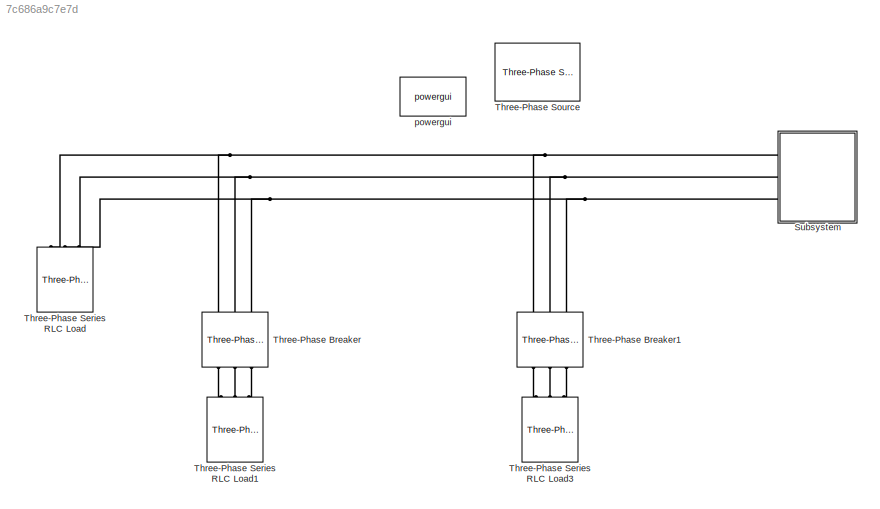
MODEL slx_7c686a9c7e7d
KIND model
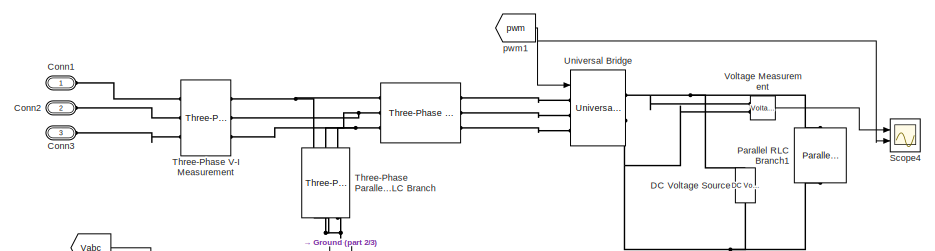
[diagram: Subsystem - part 1/3, top center region]
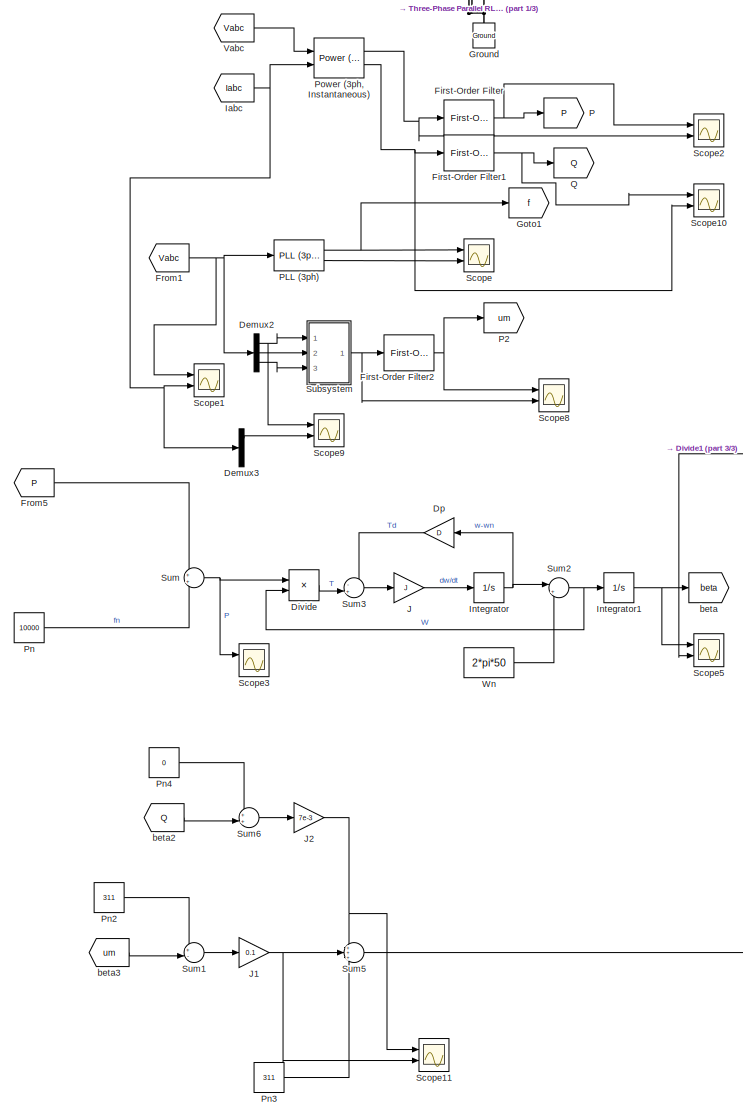
[diagram: Subsystem - part 2/3, left side, full height]
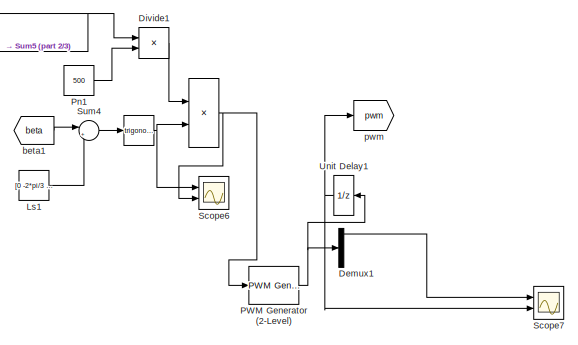
[diagram: Subsystem - part 3/3, middle right region]
BLOCK [SubSystem] Subsystem
  Ports = [0, 0, 0, 0, 0, 3]
  RequestExecContextInheritance = off
BLOCK [Trigonometry] Subsystem/ 
  Ports = [1, 1]
BLOCK [Product] Subsystem/  
  InputSameDT = off
  OutDataTypeStr = Inherit: Inherit via internal rule
  Ports = [2, 1]
  RndMeth = Floor
  SaturateOnIntegerOverflow = off
BLOCK [Reference] Subsystem/                                REF=powerlib/Elements/Three-Phase
Series RLC Branch
  AttributesFormatString = \n
  BranchType = L
  Capacitance = 1e-6
  Inductance = 5.1e-3
  LConnTagsString = A|B|C
  Measurements = None
  Ports = [0, 0, 0, 0, 0, 3, 3]
  RConnTagsString = A|B|C
  Resistance = 0.0001
  SourceBlock = powerlib/Elements/Three-Phase\nSeries RLC Branch
  SourceType = Three-Phase Series RLC Branch
BLOCK [PMIOPort] Subsystem/Conn1
  Port = 1
  Side = Left
BLOCK [PMIOPort] Subsystem/Conn2
  Port = 2
  Side = Left
BLOCK [PMIOPort] Subsystem/Conn3
  Port = 3
  Side = Left
BLOCK [Reference] Subsystem/DC Voltage Source  REF=powerlib/Electrical
Sources/DC Voltage Source
  Amplitude = 1000
  Measurements = None
  Ports = [0, 0, 0, 0, 0, 1, 1]
  SourceBlock = powerlib/Electrical\nSources/DC Voltage Source
  SourceType = DC Voltage Source
BLOCK [Demux] Subsystem/Demux1
  DisplayOption = bar
  Outputs = 6
  Ports = [1, 6]
BLOCK [Demux] Subsystem/Demux2
  DisplayOption = bar
  Outputs = 3
  Ports = [1, 3]
BLOCK [Demux] Subsystem/Demux3
  DisplayOption = bar
  Outputs = 3
  Ports = [1, 3]
BLOCK [Product] Subsystem/Divide
  InputSameDT = off
  Inputs = */
  OutDataTypeStr = Inherit: Inherit via internal rule
  Ports = [2, 1]
  RndMeth = Floor
  SaturateOnIntegerOverflow = off
BLOCK [Product] Subsystem/Divide1
  InputSameDT = off
  Inputs = */
  OutDataTypeStr = Inherit: Inherit via internal rule
  Ports = [2, 1]
  RndMeth = Floor
  SaturateOnIntegerOverflow = off
BLOCK [Gain] Subsystem/Dp
  Gain = D
  OutDataTypeStr = Inherit: Inherit via internal rule
  ParamDataTypeStr = Inherit: Inherit via internal rule
  SaturateOnIntegerOverflow = off
BLOCK [Reference] Subsystem/First-Order Filter  REF=powerlib_meascontrol/Filters/First-Order
Filter
  FilterType = Lowpass
  FreqRange = [0,  200,  1]
  Initialize = off
  PlotResponse = off
  Ports = [1, 1]
  SourceBlock = powerlib_meascontrol/Filters/First-Order\nFilter
  SourceType = First-Order Filter
  Tc = 1e-3
  Ts = 0
  Vac_Init = [0, 0, 50]
  Vdc_Init = 0
BLOCK [Reference] Subsystem/First-Order Filter1  REF=powerlib_meascontrol/Filters/First-Order
Filter
  FilterType = Lowpass
  FreqRange = [0,  200,  1]
  Initialize = on
  PlotResponse = off
  Ports = [1, 1]
  SourceBlock = powerlib_meascontrol/Filters/First-Order\nFilter
  SourceType = First-Order Filter
  Tc = 1e-3
  Ts = 0
  Vac_Init = [0, 0, 50]
  Vdc_Init = 0
BLOCK [Reference] Subsystem/First-Order Filter2  REF=powerlib_meascontrol/Filters/First-Order
Filter
  FilterType = Lowpass
  FreqRange = [0,  200,  1]
  Initialize = on
  PlotResponse = off
  Ports = [1, 1]
  SourceBlock = powerlib_meascontrol/Filters/First-Order\nFilter
  SourceType = First-Order Filter
  Tc = 1e-3
  Ts = 0
  Vac_Init = [0, 0, 50]
  Vdc_Init = 0
BLOCK [From] Subsystem/From1
  GotoTag = Vabc
  TagVisibility = global
BLOCK [From] Subsystem/From5
  GotoTag = P
BLOCK [Goto] Subsystem/Goto1
  GotoTag = f
BLOCK [Reference] Subsystem/Ground  REF=powerlib/Elements/Ground
  LConnTagsString = a
  Ports = [0, 0, 0, 0, 0, 1]
  SourceBlock = powerlib/Elements/Ground
  SourceType = Ground
BLOCK [From] Subsystem/Iabc
  GotoTag = Iabc
  TagVisibility = global
BLOCK [Integrator] Subsystem/Integrator
  Ports = [1, 1]
BLOCK [Integrator] Subsystem/Integrator1
  Ports = [1, 1]
BLOCK [Gain] Subsystem/J
  Gain = J
  OutDataTypeStr = Inherit: Inherit via internal rule
  ParamDataTypeStr = Inherit: Inherit via internal rule
  SaturateOnIntegerOverflow = off
BLOCK [Gain] Subsystem/J1
  Gain = 0.1
  OutDataTypeStr = Inherit: Inherit via internal rule
  ParamDataTypeStr = Inherit: Inherit via internal rule
  SaturateOnIntegerOverflow = off
BLOCK [Gain] Subsystem/J2
  Gain = 7e-3
  OutDataTypeStr = Inherit: Inherit via internal rule
  ParamDataTypeStr = Inherit: Inherit via internal rule
  SaturateOnIntegerOverflow = off
BLOCK [Constant] Subsystem/Ls1
  Value = [0 -2*pi/3 2*pi/3]
BLOCK [Goto] Subsystem/P
  GotoTag = P
BLOCK [Goto] Subsystem/P2
  GotoTag = um
BLOCK [Reference] Subsystem/PLL (3ph)  REF=powerlib_meascontrol/PLL/PLL
(3ph)
  AGC = on
  FilterCutOffFreq = 25
  Fmin = 45
  MaxRateChangeFreq = 12
  ParK = [180, 3200, 1]
  Par_Init = [0, 50]
  Ports = [1, 2]
  SourceBlock = powerlib_meascontrol/PLL/PLL\n(3ph)
  SourceType = PLL (3ph)
  TcD = 1e-5
  Ts = Ts
BLOCK [Reference] Subsystem/PWM Generator (2-Level)  REF=powerlib_meascontrol/Pulse & Signal
Generators/PWM Generator
(2-Level)
  Fc = 200*50
  Freq = 60
  ModulatingSignals = off
  ModulatorMode = Unsynchronized
  ModulatorType = Three-phase bridge (6 pulses)
  Phase = 0
  Ports = [1, 1]
  SourceBlock = powerlib_meascontrol/Pulse & Signal\nGenerators/PWM Generator\n(2-Level)
  SourceType = PWM Generator (2-Level)
  Ts = 0
  m = 0.8
  nF = 100
BLOCK [Reference] Subsystem/Parallel RLC Branch1  REF=powerlib/Elements/Parallel RLC Branch
  AttributesFormatString = \n
  BranchType = R
  Capacitance = 1e-6
  Inductance = 1e-3
  InitialCurrent = 0
  InitialVoltage = 0
  LConnTagsString = a
  Measurements = None
  Ports = [0, 0, 0, 0, 0, 1, 1]
  RConnTagsString = __new0
  Resistance = 100
  SetiL0 = off
  Setx0 = off
  SourceBlock = powerlib/Elements/Parallel RLC Branch
  SourceType = Parallel RLC Branch
BLOCK [Constant] Subsystem/Pn
  Value = 10000
BLOCK [Constant] Subsystem/Pn1
  Value = 500
BLOCK [Constant] Subsystem/Pn2
  Value = 311
BLOCK [Constant] Subsystem/Pn3
  Value = 311
BLOCK [Constant] Subsystem/Pn4
  Value = 0
BLOCK [Reference] Subsystem/Power (3ph, Instantaneous)  REF=powerlib_meascontrol/Measurements/Power
(3ph, Instantaneous)
  Ports = [2, 2]
  SourceBlock = powerlib_meascontrol/Measurements/Power\n(3ph, Instantaneous)
  SourceType = Power (3ph, Instantaneous)
BLOCK [Goto] Subsystem/Q
  GotoTag = Q
BLOCK [Scope] Subsystem/Scope
  Floating = off
  LimitDataPoints = off
  NumInputPorts = 2
  Ports = [2]
  ShowLegends = off
  YMax = 60~6.5
  YMin = 59.9999~0
BLOCK [Scope] Subsystem/Scope1
  DataFormat = StructureWithTime
  Floating = off
  LimitDataPoints = off
  NumInputPorts = 2
  Ports = [2]
  SaveName = ScopeData1
  SaveToWorkspace = on
  ShowLegends = off
  YMax = 1200~65
  YMin = -1200~0
  ZoomMode = xonly
BLOCK [Scope] Subsystem/Scope10
  DataFormat = StructureWithTime
  Floating = off
  LimitDataPoints = off
  NumInputPorts = 2
  Ports = [2]
  SaveName = ScopeData10
  SaveToWorkspace = on
  ShowLegends = off
  YMax = 1~3
  YMin = -1~-3
BLOCK [Scope] Subsystem/Scope11
  Floating = off
  LimitDataPoints = off
  NumInputPorts = 2
  Ports = [2]
  SaveName = ScopeData11
  ShowLegends = off
  TimeRange = 0.5
  YMax = 1~35
  YMin = -9~-5
BLOCK [Scope] Subsystem/Scope2
  DataFormat = StructureWithTime
  Floating = off
  LimitDataPoints = off
  NumInputPorts = 2
  Ports = [2]
  SaveName = ScopeData2
  SaveToWorkspace = on
  ShowLegends = off
  YMax = -9975~-9800
  YMin = -10035~-10300
BLOCK [Scope] Subsystem/Scope3
  Floating = off
  LimitDataPoints = off
  NumInputPorts = 2
  Ports = [2]
  SaveName = ScopeData3
  ShowLegends = off
  YMax = -9000~1
  YMin = -9800~-1
BLOCK [Scope] Subsystem/Scope4
  Floating = off
  LimitDataPoints = off
  NumInputPorts = 2
  Ports = [2]
  SaveName = ScopeData4
  ShowLegends = off
  YMax = 525~1
  YMin = 475~0
  ZoomMode = xonly
BLOCK [Scope] Subsystem/Scope5
  Floating = off
  LimitDataPoints = off
  NumInputPorts = 2
  Ports = [2]
  SaveName = ScopeData5
  ShowLegends = off
  YMax = 113~1
  YMin = 94~-1
BLOCK [Scope] Subsystem/Scope6
  Floating = off
  LimitDataPoints = off
  NumInputPorts = 2
  Ports = [2]
  SaveName = ScopeData6
  ShowLegends = off
  YMax = 1~0.8
  YMin = -1~-0.8
  ZoomMode = xonly
BLOCK [Scope] Subsystem/Scope7
  DataFormat = StructureWithTime
  Floating = off
  LimitDataPoints = off
  NumInputPorts = 2
  Ports = [2]
  SaveName = ScopeData7
  SaveToWorkspace = on
  ShowLegends = off
  TimeRange = 0.001051620249093166
  YMax = 1.5~1
  YMin = -0.5~-1
  ZoomMode = xonly
BLOCK [Scope] Subsystem/Scope8
  Floating = off
  LimitDataPoints = off
  NumInputPorts = 2
  Ports = [2]
  SaveName = ScopeData8
  ShowLegends = off
  TimeRange = 0.8
  YMax = 500~1
  YMin = 0~-1
  ZoomMode = yonly
BLOCK [Scope] Subsystem/Scope9
  DataFormat = StructureWithTime
  Floating = off
  LimitDataPoints = off
  NumInputPorts = 2
  Ports = [2]
  SaveName = ScopeData9
  SaveToWorkspace = on
  ShowLegends = off
  YMax = 300~22.5
  YMin = -350~-22.5
  ZoomMode = xonly
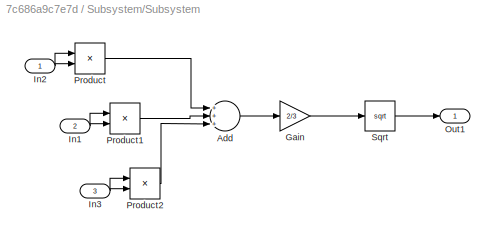
BLOCK [SubSystem] Subsystem/Subsystem
  Ports = [3, 1]
  RequestExecContextInheritance = off
BLOCK [Sum] Subsystem/Subsystem/Add
  InputSameDT = off
  Inputs = +++
  OutDataTypeStr = Inherit: Inherit via internal rule
  Ports = [3, 1]
  SaturateOnIntegerOverflow = off
BLOCK [Gain] Subsystem/Subsystem/Gain
  Gain = 2/3
  OutDataTypeStr = Inherit: Inherit via internal rule
  ParamDataTypeStr = Inherit: Inherit via internal rule
  SaturateOnIntegerOverflow = off
BLOCK [Inport] Subsystem/Subsystem/In1
  IconDisplay = Port number
  Port = 2
BLOCK [Inport] Subsystem/Subsystem/In2
  IconDisplay = Port number
BLOCK [Inport] Subsystem/Subsystem/In3
  IconDisplay = Port number
  Port = 3
BLOCK [Outport] Subsystem/Subsystem/Out1
  IconDisplay = Port number
BLOCK [Product] Subsystem/Subsystem/Product
  InputSameDT = off
  OutDataTypeStr = Inherit: Inherit via internal rule
  Ports = [2, 1]
  RndMeth = Floor
  SaturateOnIntegerOverflow = off
BLOCK [Product] Subsystem/Subsystem/Product1
  InputSameDT = off
  OutDataTypeStr = Inherit: Inherit via internal rule
  Ports = [2, 1]
  RndMeth = Floor
  SaturateOnIntegerOverflow = off
BLOCK [Product] Subsystem/Subsystem/Product2
  InputSameDT = off
  OutDataTypeStr = Inherit: Inherit via internal rule
  Ports = [2, 1]
  RndMeth = Floor
  SaturateOnIntegerOverflow = off
BLOCK [Sqrt] Subsystem/Subsystem/Sqrt
BLOCK [Sum] Subsystem/Sum
  IconShape = round
  InputSameDT = off
  OutDataTypeStr = Inherit: Inherit via internal rule
  Ports = [2, 1]
  SaturateOnIntegerOverflow = off
BLOCK [Sum] Subsystem/Sum1
  IconShape = round
  InputSameDT = off
  Inputs = +-|
  OutDataTypeStr = Inherit: Inherit via internal rule
  Ports = [2, 1]
  SaturateOnIntegerOverflow = off
BLOCK [Sum] Subsystem/Sum2
  IconShape = round
  InputSameDT = off
  Inputs = |++
  OutDataTypeStr = Inherit: Inherit via internal rule
  Ports = [2, 1]
  SaturateOnIntegerOverflow = off
BLOCK [Sum] Subsystem/Sum3
  IconShape = round
  InputSameDT = off
  Inputs = -+|
  OutDataTypeStr = Inherit: Inherit via internal rule
  Ports = [2, 1]
  SaturateOnIntegerOverflow = off
BLOCK [Sum] Subsystem/Sum4
  IconShape = round
  InputSameDT = off
  Inputs = |++
  OutDataTypeStr = Inherit: Inherit via internal rule
  Ports = [2, 1]
  SaturateOnIntegerOverflow = off
BLOCK [Sum] Subsystem/Sum5
  IconShape = round
  InputSameDT = off
  Inputs = +++
  OutDataTypeStr = Inherit: Inherit via internal rule
  Ports = [3, 1]
  SaturateOnIntegerOverflow = off
BLOCK [Sum] Subsystem/Sum6
  IconShape = round
  InputSameDT = off
  Inputs = ++|
  OutDataTypeStr = Inherit: Inherit via internal rule
  Ports = [2, 1]
  SaturateOnIntegerOverflow = off
BLOCK [Reference] Subsystem/Three-Phase Parallel RLC Branch  REF=powerlib/Elements/Three-Phase
Parallel RLC Branch
  AttributesFormatString = \n
  BranchType = C
  Capacitance = 4.9e-6
  Inductance = 1e-3
  LConnTagsString = A|B|C
  Measurements = None
  Ports = [0, 0, 0, 0, 0, 3, 3]
  RConnTagsString = A|B|C
  Resistance = 1
  SourceBlock = powerlib/Elements/Three-Phase\nParallel RLC Branch
  SourceType = Three-Phase Parallel RLC Branch
BLOCK [Reference] Subsystem/Three-Phase V-I Measurement  REF=powerlib/Measurements/Three-Phase
V-I Measurement
  CurrentMeasurement = yes
  Ipu = off
  LabelI = Iabc
  LabelV = Vabc
  OutputType = Complex
  PSBequivalent = 0
  Pbase = 100e6
  PhasorSimulation = off
  Ports = [0, 0, 0, 0, 0, 3, 3]
  SetLabelI = on
  SetLabelV = on
  SourceBlock = powerlib/Measurements/Three-Phase\nV-I Measurement
  SourceType = Three-Phase VI Measurement
  Vbase = 500e3
  VoltageMeasurement = phase-to-ground
  Vpu = off
  VpuLL = off
BLOCK [UnitDelay] Subsystem/Unit Delay1
  SampleTime = Ts
BLOCK [Reference] Subsystem/Universal Bridge  REF=powerlib/Power
Electronics/Universal Bridge
  Arms = 3
  Device = IGBT / Diodes
  ForwardVoltage = 0
  ForwardVoltages = [  0  0  ]
  GTOparameters = [ 10e-6 , 20e-6 ]
  IGBTparameters = [ 1e-6 , 2e-6 ]
  Lon = 0
  Measurements = None
  Measurements_2 = None
  Ports = [1, 0, 0, 0, 0, 3, 2]
  Ron = 1e-3
  SnubberCapacitance = inf
  SnubberResistance = 1e5
  SourceBlock = powerlib/Power\nElectronics/Universal Bridge
  SourceType = Universal Bridge
  converterType = Rectifier
BLOCK [From] Subsystem/Vabc
  GotoTag = Vabc
  TagVisibility = global
BLOCK [Reference] Subsystem/Voltage Measurement  REF=powerlib/Measurements/Voltage Measurement
  OutputType = Complex
  PSBequivalent = 0
  PhasorSimulation = off
  Ports = [0, 1, 0, 0, 0, 2]
  SourceBlock = powerlib/Measurements/Voltage Measurement
  SourceType = Voltage Measurement
  UserDataPersistent = on
BLOCK [Constant] Subsystem/Wn
  Value = 2*pi*50
BLOCK [Goto] Subsystem/beta
  GotoTag = beta
BLOCK [From] Subsystem/beta1
  GotoTag = beta
BLOCK [From] Subsystem/beta2
  GotoTag = Q
BLOCK [From] Subsystem/beta3
  GotoTag = um
BLOCK [Goto] Subsystem/pwm
  GotoTag = pwm
BLOCK [From] Subsystem/pwm1
  GotoTag = pwm
BLOCK [Reference] Three-Phase Breaker  REF=powerlib/Elements/Three-Phase Breaker
  BreakerResistance = 0.01
  External = off
  InitialState = open
  Measurements = None
  Ports = [0, 0, 0, 0, 0, 3, 3]
  SnubberCapacitance = inf
  SnubberResistance = 1e6
  SourceBlock = powerlib/Elements/Three-Phase Breaker
  SourceType = Three-Phase Breaker
  SwitchA = on
  SwitchB = on
  SwitchC = on
  SwitchTimes = [0.1 0.3]
BLOCK [Reference] Three-Phase Breaker1  REF=powerlib/Elements/Three-Phase Breaker
  BreakerResistance = 0.01
  External = off
  InitialState = open
  Measurements = None
  Ports = [0, 0, 0, 0, 0, 3, 3]
  SnubberCapacitance = inf
  SnubberResistance = 1e6
  SourceBlock = powerlib/Elements/Three-Phase Breaker
  SourceType = Three-Phase Breaker
  SwitchA = on
  SwitchB = on
  SwitchC = on
  SwitchTimes = [0.5  0.7]
BLOCK [Reference] Three-Phase Series RLC Load  REF=powerlib/Elements/Three-Phase
Series RLC Load
  ActivePower = 10e3
  AttributesFormatString = \n
  CapacitivePower = 1
  Configuration = Y (grounded)
  InductivePower = 1
  LConnTagsString = A|B|C
  LoadType = constant Z
  Measurements = Branch voltages
  NominalFrequency = 50
  NominalVoltage = 380
  Ports = [0, 0, 0, 0, 0, 3]
  SourceBlock = powerlib/Elements/Three-Phase\nSeries RLC Load
  SourceType = Three-Phase Series RLC Load
BLOCK [Reference] Three-Phase Series RLC Load1  REF=powerlib/Elements/Three-Phase
Series RLC Load
  ActivePower = 1
  AttributesFormatString = \n
  CapacitivePower = 5e3
  Configuration = Y (grounded)
  InductivePower = 1
  LConnTagsString = A|B|C
  LoadType = constant Z
  Measurements = Branch voltages
  NominalFrequency = 50
  NominalVoltage = 380
  Ports = [0, 0, 0, 0, 0, 3]
  SourceBlock = powerlib/Elements/Three-Phase\nSeries RLC Load
  SourceType = Three-Phase Series RLC Load
BLOCK [Reference] Three-Phase Series RLC Load3  REF=powerlib/Elements/Three-Phase
Series RLC Load
  ActivePower = 1
  AttributesFormatString = \n
  CapacitivePower = 1
  Configuration = Y (grounded)
  InductivePower = 1
  LConnTagsString = A|B|C
  LoadType = constant Z
  Measurements = Branch voltages
  NominalFrequency = 50
  NominalVoltage = 380
  Ports = [0, 0, 0, 0, 0, 3]
  SourceBlock = powerlib/Elements/Three-Phase\nSeries RLC Load
  SourceType = Three-Phase Series RLC Load
BLOCK [Reference] Three-Phase Source  REF=powerlib/Electrical
Sources/Three-Phase Source
  BaseVoltage = 25e3
  BusType = swing
  Frequency = 50
  Inductance = 16.58e-3
  InternalConnection = Yg
  PhaseAngle = 0
  Ports = [0, 0, 0, 0, 0, 0, 3]
  Pref = 0
  Qmax = inf
  Qmin = -inf
  Qref = 0
  Resistance = 0.8929
  ShortCircuitLevel = 100e6
  SourceBlock = powerlib/Electrical\nSources/Three-Phase Source
  SourceType = Three-Phase Source
  SpecifyImpedance = on
  Voltage = 1000*sqrt(2)
  XRratio = 7
BLOCK [Reference] powergui  REF=powerlib/powergui
  DisableRonSwitches = off
  DisableSnubberDevices = off
  DisableVfSwitches = off
  DisplayEquations = off
  DisplayStyle = 5
  EnableUseOfTLC = off
  ErrMax = 1e-4
  Frange = [0:2:500]
  FreqAxis = on
  FunctionMessages = off
  HookPort = off
  Interpol = off
  Iterations = 50
  MaxFrequency = 1000
  Pbase = 100e6
  Ports = []
  Priority = 1
  ResistiveCurrentMeasurement = off
  RestoreLinks = warning
  RmsSteady = 1
  SPID = off
  SampleTime = 1e-6
  ShowGrid = off
  SolverType = Tustin
  SourceBlock = powerlib/powergui
  SourceType = PSB option menu block
  StartTime = 0.1
  SwTol = 0
  Ts = 0
  UnitsV = kV
  UnitsW = MW
  UserDataPersistent = on
  Xlog = on
  Ylog = off
  ZoomFFT = off
  cycles = 1
  display = off
  echomessages = off
  frequency = 60
  frequencyindice = 0
  frequencyindicesteady = 1
  fundamental = 50
  methode = off
  save = off
  structure = ScopeData10
  variable = ZData
  x0status = blocks
NET Subsystem/  :1 -> Subsystem/PWM Generator (2-Level):1, Subsystem/Scope6:2
NET Subsystem/ :1 -> Subsystem/  :2, Subsystem/Scope6:1
LINE Subsystem/Demux1:1 -> Subsystem/Scope7:1
NET Subsystem/Demux2:1 -> Subsystem/Scope9:1, Subsystem/Subsystem:1
LINE Subsystem/Demux2:2 -> Subsystem/Subsystem:2
LINE Subsystem/Demux2:3 -> Subsystem/Subsystem:3
LINE Subsystem/Demux3:1 -> Subsystem/Scope9:2
LINE Subsystem/Divide1:1 -> Subsystem/  :1
LINE Subsystem/Divide:1 -> Subsystem/Sum3:2
LINE Subsystem/Dp:1 -> Subsystem/Sum3:1
NET Subsystem/First-Order Filter1:1 -> Subsystem/Q:1, Subsystem/Scope10:1
NET Subsystem/First-Order Filter2:1 -> Subsystem/P2:1, Subsystem/Scope8:1
NET Subsystem/First-Order Filter:1 -> Subsystem/P:1, Subsystem/Scope2:1
NET Subsystem/From1:1 -> Subsystem/Demux2:1, Subsystem/PLL (3ph):1, Subsystem/Scope1:1
LINE Subsystem/From5:1 -> Subsystem/Sum:1
NET Subsystem/Iabc:1 -> Subsystem/Demux3:1, Subsystem/Power (3ph, Instantaneous):2, Subsystem/Scope1:2
NET Subsystem/Integrator1:1 -> Subsystem/Scope5:1, Subsystem/beta:1
NET Subsystem/Integrator:1 -> Subsystem/Dp:1, Subsystem/Sum2:1
NET Subsystem/J1:1 -> Subsystem/Scope11:2, Subsystem/Sum5:2
NET Subsystem/J2:1 -> Subsystem/Scope11:1, Subsystem/Sum5:1
LINE Subsystem/J:1 -> Subsystem/Integrator:1
LINE Subsystem/Ls1:1 -> Subsystem/Sum4:2
NET Subsystem/PLL (3ph):1 -> Subsystem/Goto1:1, Subsystem/Scope:1
LINE Subsystem/PLL (3ph):2 -> Subsystem/Scope:2
NET Subsystem/PWM Generator (2-Level):1 -> Subsystem/Demux1:1, Subsystem/Unit Delay1:1
LINE Subsystem/Pn1:1 -> Subsystem/Divide1:2
LINE Subsystem/Pn2:1 -> Subsystem/Sum1:1
LINE Subsystem/Pn3:1 -> Subsystem/Sum5:3
LINE Subsystem/Pn4:1 -> Subsystem/Sum6:1
LINE Subsystem/Pn:1 -> Subsystem/Sum:2
NET Subsystem/Power (3ph, Instantaneous):1 -> Subsystem/First-Order Filter:1, Subsystem/Scope2:2
NET Subsystem/Power (3ph, Instantaneous):2 -> Subsystem/First-Order Filter1:1, Subsystem/Scope10:2
LINE Subsystem/Subsystem/Add:1 -> Subsystem/Subsystem/Gain:1
LINE Subsystem/Subsystem/Gain:1 -> Subsystem/Subsystem/Sqrt:1
NET Subsystem/Subsystem/In1:1 -> Subsystem/Subsystem/Product1:1, Subsystem/Subsystem/Product1:2
NET Subsystem/Subsystem/In2:1 -> Subsystem/Subsystem/Product:1, Subsystem/Subsystem/Product:2
NET Subsystem/Subsystem/In3:1 -> Subsystem/Subsystem/Product2:1, Subsystem/Subsystem/Product2:2
LINE Subsystem/Subsystem/Product1:1 -> Subsystem/Subsystem/Add:2
LINE Subsystem/Subsystem/Product2:1 -> Subsystem/Subsystem/Add:3
LINE Subsystem/Subsystem/Product:1 -> Subsystem/Subsystem/Add:1
LINE Subsystem/Subsystem/Sqrt:1 -> Subsystem/Subsystem/Out1:1
NET Subsystem/Subsystem:1 -> Subsystem/First-Order Filter2:1, Subsystem/Scope8:2
LINE Subsystem/Sum1:1 -> Subsystem/J1:1
NET Subsystem/Sum2:1 -> Subsystem/Divide:2, Subsystem/Integrator1:1
LINE Subsystem/Sum3:1 -> Subsystem/J:1
LINE Subsystem/Sum4:1 -> Subsystem/ :1
NET Subsystem/Sum5:1 -> Subsystem/Divide1:1, Subsystem/Scope5:2
LINE Subsystem/Sum6:1 -> Subsystem/J2:1
NET Subsystem/Sum:1 -> Subsystem/Divide:1, Subsystem/Scope3:1
NET Subsystem/Unit Delay1:1 -> Subsystem/Scope7:2, Subsystem/pwm:1
LINE Subsystem/Vabc:1 -> Subsystem/Power (3ph, Instantaneous):1
LINE Subsystem/Voltage Measurement:1 -> Subsystem/Scope4:1
LINE Subsystem/Wn:1 -> Subsystem/Sum2:2
LINE Subsystem/beta1:1 -> Subsystem/Sum4:1
LINE Subsystem/beta2:1 -> Subsystem/Sum6:2
LINE Subsystem/beta3:1 -> Subsystem/Sum1:2
NET Subsystem/pwm1:1 -> Subsystem/Scope4:2, Subsystem/Universal Bridge:1
PNET net1: Subsystem/                              :LConn1 -- Subsystem/Three-Phase Parallel RLC Branch:LConn1 -- Subsystem/Three-Phase V-I Measurement:RConn1
PNET net2: Subsystem/                              :LConn2 -- Subsystem/Three-Phase Parallel RLC Branch:LConn2 -- Subsystem/Three-Phase V-I Measurement:RConn2
PNET net3: Subsystem/                              :LConn3 -- Subsystem/Three-Phase Parallel RLC Branch:LConn3 -- Subsystem/Three-Phase V-I Measurement:RConn3
PLINE Subsystem/                              :RConn1 -- Subsystem/Universal Bridge:LConn1
PLINE Subsystem/                              :RConn2 -- Subsystem/Universal Bridge:LConn2
PLINE Subsystem/                              :RConn3 -- Subsystem/Universal Bridge:LConn3
PLINE Subsystem/Conn1:RConn1 -- Subsystem/Three-Phase V-I Measurement:LConn1
PLINE Subsystem/Conn2:RConn1 -- Subsystem/Three-Phase V-I Measurement:LConn2
PLINE Subsystem/Conn3:RConn1 -- Subsystem/Three-Phase V-I Measurement:LConn3
PNET net4: Subsystem/DC Voltage Source:LConn1 -- Subsystem/Parallel RLC Branch1:RConn1 -- Subsystem/Universal Bridge:RConn2 -- Subsystem/Voltage Measurement:LConn2
PNET net5: Subsystem/DC Voltage Source:RConn1 -- Subsystem/Parallel RLC Branch1:LConn1 -- Subsystem/Universal Bridge:RConn1 -- Subsystem/Voltage Measurement:LConn1
PNET net6: Subsystem/Ground:LConn1 -- Subsystem/Three-Phase Parallel RLC Branch:RConn1 -- Subsystem/Three-Phase Parallel RLC Branch:RConn2 -- Subsystem/Three-Phase Parallel RLC Branch:RConn3
PNET net7: Subsystem:LConn1 -- Three-Phase Breaker1:LConn1 -- Three-Phase Breaker:LConn1 -- Three-Phase Series RLC Load:LConn1
PNET net8: Subsystem:LConn2 -- Three-Phase Breaker1:LConn2 -- Three-Phase Breaker:LConn2 -- Three-Phase Series RLC Load:LConn2
PNET net9: Subsystem:LConn3 -- Three-Phase Breaker1:LConn3 -- Three-Phase Breaker:LConn3 -- Three-Phase Series RLC Load:LConn3
PLINE Three-Phase Breaker1:RConn1 -- Three-Phase Series RLC Load3:LConn1
PLINE Three-Phase Breaker1:RConn2 -- Three-Phase Series RLC Load3:LConn2
PLINE Three-Phase Breaker1:RConn3 -- Three-Phase Series RLC Load3:LConn3
PLINE Three-Phase Breaker:RConn1 -- Three-Phase Series RLC Load1:LConn1
PLINE Three-Phase Breaker:RConn2 -- Three-Phase Series RLC Load1:LConn2
PLINE Three-Phase Breaker:RConn3 -- Three-Phase Series RLC Load1:LConn3
note: NET lines group one-source signal fan-out (src -> all destinations, sorted); 1:1 wires keep LINE; PNET lines group multi-terminal physical nets as a canonical sorted terminal list (undirected conserving connections); 2-terminal nets keep the pairwise PLINE form
